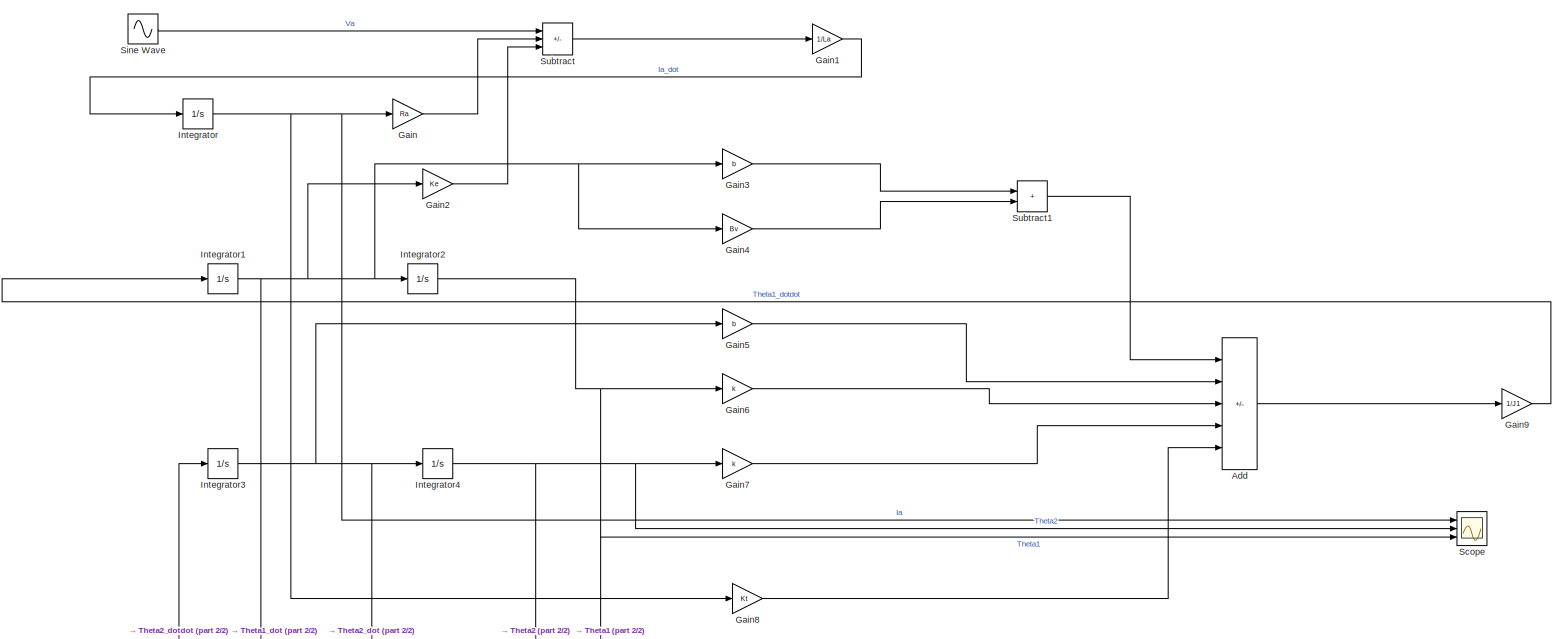
[diagram: root canvas - part 1/2, full width, top band]
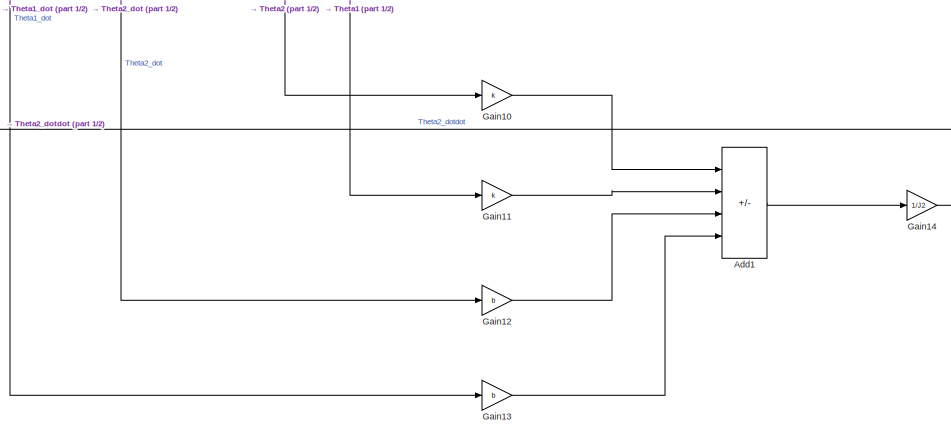
[diagram: root canvas - part 2/2, bottom center region]
MODEL slx_d214a53ab5fc
KIND model
CONFIG AbsTol = auto
CONFIG EnableMultiTasking = off
CONFIG FixedStep = auto
CONFIG MaxStep = auto
CONFIG MinStep = auto
CONFIG RelTol = 1e-3
CONFIG SampleTimeConstraint = Unconstrained
CONFIG SolverName = VariableStepAuto
CONFIG StartTime = 0.0
CONFIG StopTime = 10.0
BLOCK [Sum] Add
  IconShape = rectangular
  Inputs = -+-++
  Ports = [5, 1]
BLOCK [Sum] Add1
  IconShape = rectangular
  Inputs = -+-+
  Ports = [4, 1]
BLOCK [Gain] Gain
  Gain = Ra
BLOCK [Gain] Gain1
  Gain = 1/La
BLOCK [Gain] Gain10
  Gain = k
BLOCK [Gain] Gain11
  Gain = k
BLOCK [Gain] Gain12
  Gain = b
BLOCK [Gain] Gain13
  Gain = b
BLOCK [Gain] Gain14
  Gain = 1/J2
BLOCK [Gain] Gain2
  Gain = Ke
BLOCK [Gain] Gain3
  Gain = b
BLOCK [Gain] Gain4
  Gain = Bv
BLOCK [Gain] Gain5
  Gain = b
BLOCK [Gain] Gain6
  Gain = k
BLOCK [Gain] Gain7
  Gain = k
BLOCK [Gain] Gain8
  Gain = Kt
BLOCK [Gain] Gain9
  Gain = 1/J1
BLOCK [Integrator] Integrator
  Ports = [1, 1]
BLOCK [Integrator] Integrator1
  Ports = [1, 1]
BLOCK [Integrator] Integrator2
  Ports = [1, 1]
BLOCK [Integrator] Integrator3
  Ports = [1, 1]
BLOCK [Integrator] Integrator4
  Ports = [1, 1]
BLOCK [Scope] Scope
  Floating = off
  NumInputPorts = 3
  Ports = [3]
  ScopeSpecificationString = Simulink.scopes.TimeScopeBlockCfg('CurrentConfiguration', extmgr.ConfigurationSet(extmgr.Configuration('Core','General UI',true),extmgr.Configuration('Core','Source UI',true),extmgr.Configuration('Sources','WiredSimulink',true),extmgr.Configuration('Visuals','Time Domain',true,'SerializedDisplays',{struct('MinYLimReal','-0.05069','MaxYLimReal','0.05781','YLabelReal','','MinYLimMag','0.00000','MaxY...<+1394ch>
BLOCK [Sin] Sine Wave
  Frequency = 20
  Ports = [0, 1]
  SampleTime = 0
BLOCK [Sum] Subtract
  IconShape = rectangular
  Inputs = +--
  Ports = [3, 1]
BLOCK [Sum] Subtract1
  IconShape = rectangular
  Ports = [2, 1]
LINE Add1:1 -> Gain14:1
LINE Add:1 -> Gain9:1
LINE Gain10:1 -> Add1:1
LINE Gain11:1 -> Add1:2
LINE Gain12:1 -> Add1:3
LINE Gain13:1 -> Add1:4
LINE Gain14:1 -> Integrator3:1
LINE Gain1:1 -> Integrator:1
LINE Gain2:1 -> Subtract:3
LINE Gain3:1 -> Subtract1:1
LINE Gain4:1 -> Subtract1:2
LINE Gain5:1 -> Add:2
LINE Gain6:1 -> Add:3
LINE Gain7:1 -> Add:4
LINE Gain8:1 -> Add:5
LINE Gain9:1 -> Integrator1:1
LINE Gain:1 -> Subtract:2
NET Integrator1:1 -> Gain13:1, Gain2:1, Gain3:1, Gain4:1, Integrator2:1
NET Integrator2:1 -> Gain11:1, Gain6:1, Scope:3
NET Integrator3:1 -> Gain12:1, Gain5:1, Integrator4:1
NET Integrator4:1 -> Gain10:1, Gain7:1, Scope:2
NET Integrator:1 -> Gain8:1, Gain:1, Scope:1
LINE Sine Wave:1 -> Subtract:1
LINE Subtract1:1 -> Add:1
LINE Subtract:1 -> Gain1:1
note: NET lines group one-source signal fan-out (src -> all destinations, sorted); 1:1 wires keep LINE
